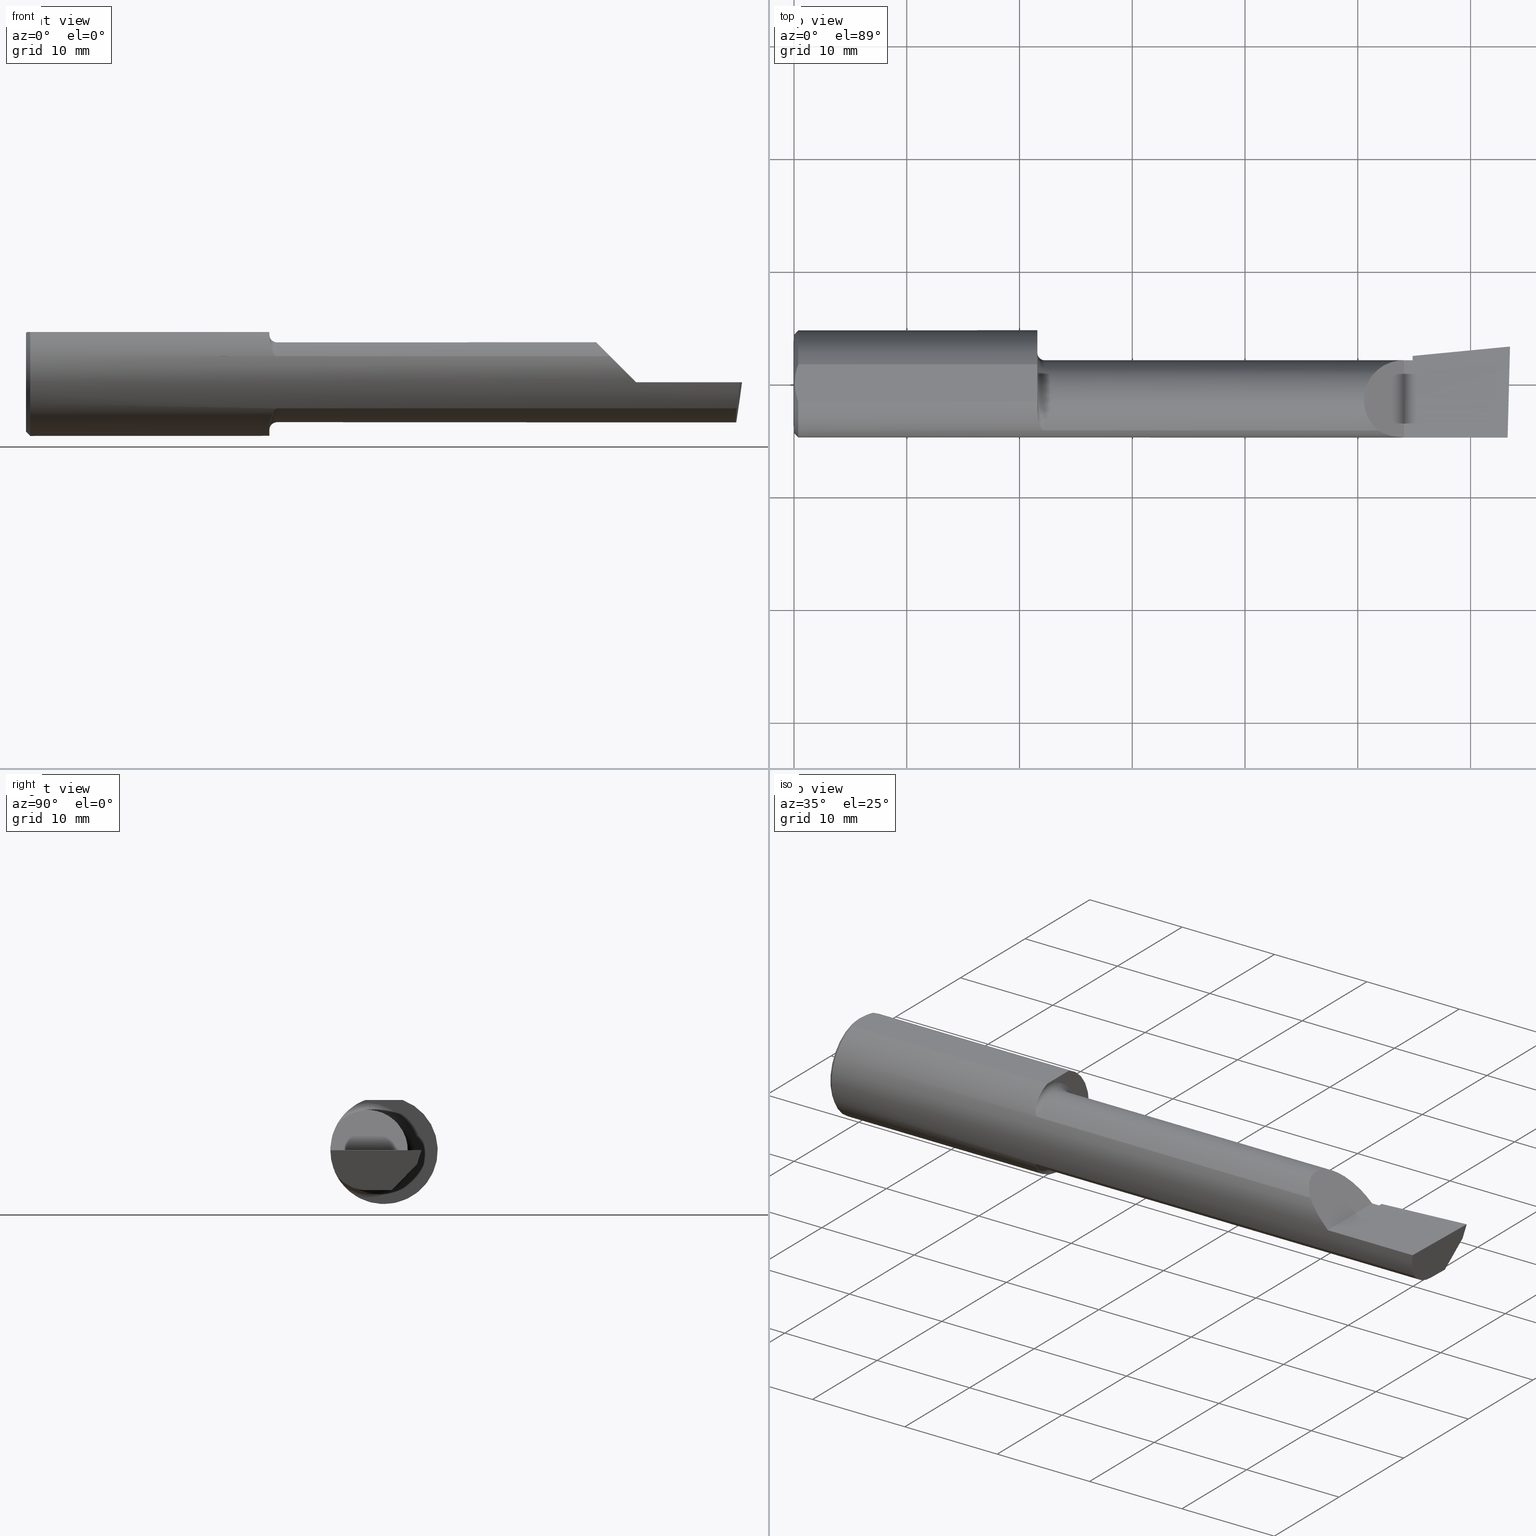
[diagram: canonical four-view strip — front | top / right | iso, engineering-drawing reading convention]
A machine part, canonical four-view strip (front | top / right | iso — engineering-drawing reading convention). The complete STEP part file that produces these views, byte-faithful:
ISO-10303-21;
HEADER;
FILE_DESCRIPTION (( 'STEP AP203' ),
    '1' );
FILE_NAME ('217492-B3201600.STEP',
    '2024-04-26T19:25:23',
    ( '' ),
    ( '' ),
    'SwSTEP 2.0',
    'SolidWorks 2022',
    '' );
FILE_SCHEMA (( 'CONFIG_CONTROL_DESIGN' ));
ENDSEC;

DATA;
#1 = FACE_OUTER_BOUND ( 'NONE', #65, .T. ) ;
#2 = VERTEX_POINT ( 'NONE', #340 ) ;
#3 = DIRECTION ( 'NONE',  ( 0.000000000000000000, 0.2936076258024060137, 0.9559260233253795702 ) ) ;
#4 = DIRECTION ( 'NONE',  ( -1.000000000000000000, -0.000000000000000000, -0.000000000000000000 ) ) ;
#5 = EDGE_CURVE ( 'NONE', #287, #401, #40, .T. ) ;
#6 = ORIENTED_EDGE ( 'NONE', *, *, #450, .F. ) ;
#7 = PRODUCT_DEFINITION_FORMATION_WITH_SPECIFIED_SOURCE ( 'ANY', '', #95, .NOT_KNOWN. ) ;
#8 = CARTESIAN_POINT ( 'NONE',  ( 0.8750000000000002220, -0.1635956445993032027, -0.09130436773856145938 ) ) ;
#9 = CARTESIAN_POINT ( 'NONE',  ( 2.477873865042410806, -0.05739999999999999963, -0.1400500000000000633 ) ) ;
#10 = PRODUCT_RELATED_PRODUCT_CATEGORY ( 'detail', '', ( #95 ) ) ;
#11 = VERTEX_POINT ( 'NONE', #532 ) ;
#12 = VECTOR ( 'NONE', #568, 39.37007874015748854 ) ;
#13 = CARTESIAN_POINT ( 'NONE',  ( 0.000000000000000000, 0.000000000000000000, 0.000000000000000000 ) ) ;
#14 = DIRECTION ( 'NONE',  ( 0.000000000000000000, 0.6963153109074925462, 0.7177360153954946975 ) ) ;
#15 = ORIENTED_EDGE ( 'NONE', *, *, #322, .F. ) ;
#16 = CARTESIAN_POINT ( 'NONE',  ( 2.511419111345318811, 0.1163922996227946677, -0.04999999999999999584 ) ) ;
#17 = PLANE ( 'NONE',  #25 ) ;
#18 = ORIENTED_EDGE ( 'NONE', *, *, #412, .T. ) ;
#19 = FACE_OUTER_BOUND ( 'NONE', #446, .T. ) ;
#20 = CARTESIAN_POINT ( 'NONE',  ( 2.491859106488688358, 0.02714641170210404381, -0.1400500000000000633 ) ) ;
#21 = ADVANCED_FACE ( 'NONE', ( #97 ), #476, .F. ) ;
#22 = ORIENTED_EDGE ( 'NONE', *, *, #488, .F. ) ;
#23 = CARTESIAN_POINT ( 'NONE',  ( 0.01499999999999997863, -0.06597272163553657975, 0.1753499999999999781 ) ) ;
#24 = DIRECTION ( 'NONE',  ( 0.000000000000000000, 0.000000000000000000, 1.000000000000000000 ) ) ;
#25 = AXIS2_PLACEMENT_3D ( 'NONE', #460, #53, #366 ) ;
#26 = ORIENTED_EDGE ( 'NONE', *, *, #335, .T. ) ;
#27 = DIRECTION ( 'NONE',  ( 1.000000000000000000, 6.829619984160658046E-18, 0.000000000000000000 ) ) ;
#28 = EDGE_CURVE ( 'NONE', #389, #11, #490, .T. ) ;
#29 = B_SPLINE_CURVE_WITH_KNOTS ( 'NONE', 3,
 ( #414, #33, #518, #35, #468, #613, #511, #324, #320, #225, #607, #319, #419, #171 ),
 .UNSPECIFIED., .F., .F.,
 ( 4, 2, 2, 2, 2, 2, 4 ),
 ( 0.0002471551878304247040, 0.0008987327522055663489, 0.001550310316580707885, 0.002201887880955849530, 0.002527676663143419919, 0.002690571054237202945, 0.002853465445330985537 ),
 .UNSPECIFIED. ) ;
#30 = APPROVAL_ROLE ( '' ) ;
#31 = DIRECTION ( 'NONE',  ( -1.000000000000000000, -6.829619984160658046E-18, -0.000000000000000000 ) ) ;
#32 =( LENGTH_UNIT ( ) NAMED_UNIT ( * ) SI_UNIT ( $, .METRE. ) );
#33 = CARTESIAN_POINT ( 'NONE',  ( 0.8500000000000003109, -0.1045012500212955386, 0.1557348687830034106 ) ) ;
#34 = APPLICATION_CONTEXT ( 'configuration controlled 3d designs of mechanical parts and assemblies' ) ;
#35 = CARTESIAN_POINT ( 'NONE',  ( 0.8518917549365453423, -0.1247344934163568814, 0.1400506178720499761 ) ) ;
#36 = DIRECTION ( 'NONE',  ( 0.000000000000000000, -1.000000000000000000, 0.000000000000000000 ) ) ;
#37 = LOCAL_TIME ( 12, 25, 23.00000000000000000, #561 ) ;
#38 = APPLICATION_CONTEXT ( 'configuration controlled 3d designs of mechanical parts and assemblies' ) ;
#39 = SECURITY_CLASSIFICATION_LEVEL ( 'unclassified' ) ;
#40 = LINE ( 'NONE', #390, #543 ) ;
#41 = CARTESIAN_POINT ( 'NONE',  ( 0.8750000000000002220, -0.1635956445993029529, 0.09130436773856175081 ) ) ;
#42 = EDGE_CURVE ( 'NONE', #593, #628, #281, .T. ) ;
#43 = CARTESIAN_POINT ( 'NONE',  ( 0.8637431740823496851, -0.1572750258711010374, -0.1018777902325211648 ) ) ;
#44 = EDGE_LOOP ( 'NONE', ( #463, #501, #158, #86, #483, #440 ) ) ;
#45 = AXIS2_PLACEMENT_3D ( 'NONE', #600, #68, #24 ) ;
#46 =( BOUNDED_CURVE ( )  B_SPLINE_CURVE ( 3, ( #122, #316, #78, #271 ),
 .UNSPECIFIED., .F., .T. ) 
 B_SPLINE_CURVE_WITH_KNOTS ( ( 4, 4 ),
 ( 4.712388980384689674, 5.221437360734125122 ),
 .UNSPECIFIED. ) 
 CURVE ( )  GEOMETRIC_REPRESENTATION_ITEM ( )  RATIONAL_B_SPLINE_CURVE ( ( 1.000000000000000000, 0.9785221379938656705, 0.9785221379938656705, 1.000000000000000000 ) ) 
 REPRESENTATION_ITEM ( '' )  );
#47 = VERTEX_POINT ( 'NONE', #428 ) ;
#48 = VECTOR ( 'NONE', #377, 39.37007874015748143 ) ;
#49 = ORIENTED_EDGE ( 'NONE', *, *, #108, .T. ) ;
#50 = ADVANCED_FACE ( 'NONE', ( #132 ), #597, .T. ) ;
#51 = VERTEX_POINT ( 'NONE', #528 ) ;
#52 = CARTESIAN_POINT ( 'NONE',  ( 0.008227791779583789808, -0.04447712204611815878, 0.1753499999999999781 ) ) ;
#53 = DIRECTION ( 'NONE',  ( -1.000000000000000000, -6.829619984160658046E-18, 0.000000000000000000 ) ) ;
#54 = CC_DESIGN_DATE_AND_TIME_ASSIGNMENT ( #380, #614, ( #367 ) ) ;
#55 = ORIENTED_EDGE ( 'NONE', *, *, #129, .F. ) ;
#56 = DIRECTION ( 'NONE',  ( -1.000000000000000000, -0.000000000000000000, -0.000000000000000000 ) ) ;
#57 = CARTESIAN_POINT ( 'NONE',  ( 2.481080296960508580, -0.1635956445993030639, -0.09130436773856169530 ) ) ;
#58 = ORIENTED_EDGE ( 'NONE', *, *, #178, .T. ) ;
#59 = CARTESIAN_POINT ( 'NONE',  ( 0.01125230581755086272, 0.05532998191409922023, 0.1753500000000000059 ) ) ;
#60 = CARTESIAN_POINT ( 'NONE',  ( 2.481080296960508580, -0.1635956445993030639, -0.09130436773856169530 ) ) ;
#61 = EDGE_CURVE ( 'NONE', #435, #51, #90, .T. ) ;
#62 = ORIENTED_EDGE ( 'NONE', *, *, #286, .F. ) ;
#63 = DIRECTION ( 'NONE',  ( 6.829619984160658046E-18, -1.000000000000000000, 0.000000000000000000 ) ) ;
#64 = CARTESIAN_POINT ( 'NONE',  ( 2.129999999999999893, 0.08264999999999983471, 1.065442715258197396E-16 ) ) ;
#65 = EDGE_LOOP ( 'NONE', ( #405, #494, #336, #581 ) ) ;
#66 = CALENDAR_DATE ( 2024, 26, 4 ) ;
#67 = DIRECTION ( 'NONE',  ( 0.1219104985251942275, 0.000000000000000000, 0.9925410975618785825 ) ) ;
#68 = DIRECTION ( 'NONE',  ( -1.000000000000000000, -0.000000000000000000, -0.000000000000000000 ) ) ;
#69 = VERTEX_POINT ( 'NONE', #8 ) ;
#70 = CALENDAR_DATE ( 2024, 26, 4 ) ;
#71 = CARTESIAN_POINT ( 'NONE',  ( 0.8500000000000001998, 0.2373500000000000332, 0.1753499999999999504 ) ) ;
#72 = VECTOR ( 'NONE', #103, 39.37007874015748143 ) ;
#73 = ADVANCED_FACE ( 'NONE', ( #545 ), #437, .T. ) ;
#74 = PERSON_AND_ORGANIZATION_ROLE ( 'creator' ) ;
#75 = DIRECTION ( 'NONE',  ( 0.000000000000000000, -1.000000000000000000, 0.000000000000000000 ) ) ;
#76 = CC_DESIGN_PERSON_AND_ORGANIZATION_ASSIGNMENT ( #510, #74, ( #7 ) ) ;
#77 = APPROVAL_STATUS ( 'not_yet_approved' ) ;
#78 = CARTESIAN_POINT ( 'NONE',  ( 2.066758987970638284, -0.1792580844883770730, 0.06324101202936138755 ) ) ;
#79 = VECTOR ( 'NONE', #262, 39.37007874015748143 ) ;
#80 = CARTESIAN_POINT ( 'NONE',  ( 2.129999999999999893, -0.2500000000000000555, 1.065442715258197396E-16 ) ) ;
#81 = VECTOR ( 'NONE', #591, 39.37007874015748143 ) ;
#82 = ADVANCED_FACE ( 'NONE', ( #19 ), #254, .F. ) ;
#83 = DIRECTION ( 'NONE',  ( 0.7071067811865390240, 0.000000000000000000, -0.7071067811865560104 ) ) ;
#84 = B_SPLINE_CURVE_WITH_KNOTS ( 'NONE', 3,
 ( #157, #300, #164, #497, #59, #100 ),
 .UNSPECIFIED., .F., .F.,
 ( 4, 2, 4 ),
 ( 0.003480013901590607410, 0.004330767971208083697, 0.005181522040825559984 ),
 .UNSPECIFIED. ) ;
#85 = CARTESIAN_POINT ( 'NONE',  ( 2.160000000000000142, 0.06382066673065307782, -0.06931012851386068874 ) ) ;
#86 = ORIENTED_EDGE ( 'NONE', *, *, #602, .F. ) ;
#87 = CC_DESIGN_APPROVAL ( #186, ( #7 ) ) ;
#88 = DIRECTION ( 'NONE',  ( 1.000000000000000000, 0.000000000000000000, 0.000000000000000000 ) ) ;
#89 = ORIENTED_EDGE ( 'NONE', *, *, #392, .F. ) ;
#90 = LINE ( 'NONE', #285, #136 ) ;
#91 = CARTESIAN_POINT ( 'NONE',  ( 2.160000000000000142, -0.05739999999999999963, 0.000000000000000000 ) ) ;
#92 = ORIENTED_EDGE ( 'NONE', *, *, #477, .T. ) ;
#93 = VERTEX_POINT ( 'NONE', #198 ) ;
#94 = AXIS2_PLACEMENT_3D ( 'NONE', #606, #124, #360 ) ;
#95 = PRODUCT ( '217492-B3201600', '217492-B3201600', '', ( #555 ) ) ;
#96 = EDGE_CURVE ( 'NONE', #201, #603, #588, .T. ) ;
#97 = FACE_OUTER_BOUND ( 'NONE', #378, .T. ) ;
#98 = CIRCLE ( 'NONE', #231, 0.1400500000000000356 ) ;
#99 = ORIENTED_EDGE ( 'NONE', *, *, #376, .F. ) ;
#100 = CARTESIAN_POINT ( 'NONE',  ( 0.01499999999999999424, 0.06597272163553663527, 0.1753499999999999781 ) ) ;
#101 = DIRECTION ( 'NONE',  ( -1.000000000000000000, -6.829619984160658046E-18, 0.000000000000000000 ) ) ;
#102 = ORIENTED_EDGE ( 'NONE', *, *, #183, .F. ) ;
#103 = DIRECTION ( 'NONE',  ( -1.000000000000000000, 5.691349986800549142E-18, -0.000000000000000000 ) ) ;
#104 = CARTESIAN_POINT ( 'NONE',  ( 2.038695632261437130, -0.1635956445993029529, 0.09130436773856188959 ) ) ;
#105 = EDGE_LOOP ( 'NONE', ( #619, #625, #233, #112, #116, #295 ) ) ;
#106 = CARTESIAN_POINT ( 'NONE',  ( 0.01499999999999999424, 0.000000000000000000, 0.000000000000000000 ) ) ;
#107 = CARTESIAN_POINT ( 'NONE',  ( 2.481080296960508580, -0.1635956445993030639, -0.09130436773856169530 ) ) ;
#108 = EDGE_CURVE ( 'NONE', #444, #69, #514, .T. ) ;
#109 = EDGE_LOOP ( 'NONE', ( #213, #217, #537, #306, #15 ) ) ;
#110 = DIRECTION ( 'NONE',  ( -1.000000000000000000, -6.829619984160658046E-18, -0.000000000000000000 ) ) ;
#111 = CARTESIAN_POINT ( 'NONE',  ( 0.000000000000000000, 0.000000000000000000, -0.1723499999999996424 ) ) ;
#112 = ORIENTED_EDGE ( 'NONE', *, *, #369, .F. ) ;
#113 = CARTESIAN_POINT ( 'NONE',  ( 0.8500000000000001998, 0.000000000000000000, 0.000000000000000000 ) ) ;
#114 = PLANE ( 'NONE',  #311 ) ;
#115 =( BOUNDED_CURVE ( )  B_SPLINE_CURVE ( 3, ( #400, #594, #548, #535 ),
 .UNSPECIFIED., .F., .F. ) 
 B_SPLINE_CURVE_WITH_KNOTS ( ( 4, 4 ),
 ( 5.422530673488458852, 7.853981633974482790 ),
 .UNSPECIFIED. ) 
 CURVE ( )  GEOMETRIC_REPRESENTATION_ITEM ( )  RATIONAL_B_SPLINE_CURVE ( ( 1.000000000000000000, 0.5651045289226863666, 0.5651045289226863666, 1.000000000000000000 ) ) 
 REPRESENTATION_ITEM ( '' )  );
#116 = ORIENTED_EDGE ( 'NONE', *, *, #28, .F. ) ;
#117 = LINE ( 'NONE', #364, #342 ) ;
#118 = EDGE_CURVE ( 'NONE', #201, #389, #159, .T. ) ;
#119 = DIRECTION ( 'NONE',  ( -0.7071067811865511255, 0.000000000000000000, 0.7071067811865437980 ) ) ;
#120 = DIRECTION ( 'NONE',  ( 0.000000000000000000, 1.000000000000000000, -1.438723400918613551E-16 ) ) ;
#121 =( NAMED_UNIT ( * ) SI_UNIT ( $, .STERADIAN. ) SOLID_ANGLE_UNIT ( ) );
#122 = CARTESIAN_POINT ( 'NONE',  ( 2.129999999999999893, -0.1873499999999999888, 1.065442715258197396E-16 ) ) ;
#123 = CIRCLE ( 'NONE', #534, 0.1873499999999999888 ) ;
#124 = DIRECTION ( 'NONE',  ( 0.000000000000000000, 0.000000000000000000, 1.000000000000000000 ) ) ;
#125 = DIRECTION ( 'NONE',  ( 0.000000000000000000, 0.000000000000000000, 1.000000000000000000 ) ) ;
#126 =( NAMED_UNIT ( * ) PLANE_ANGLE_UNIT ( ) SI_UNIT ( $, .RADIAN. ) );
#127 = CARTESIAN_POINT ( 'NONE',  ( 0.8500000000000001998, 0.06597272163553663527, 0.1753499999999999781 ) ) ;
#128 = LOCAL_TIME ( 12, 25, 23.00000000000000000, #508 ) ;
#129 = EDGE_CURVE ( 'NONE', #240, #47, #349, .T. ) ;
#130 = CARTESIAN_POINT ( 'NONE',  ( 2.493766568580444432, 0.1168246249203733628, -0.04780233936830585728 ) ) ;
#131 = VECTOR ( 'NONE', #423, 39.37007874015748143 ) ;
#132 = FACE_OUTER_BOUND ( 'NONE', #522, .T. ) ;
#133 =( BOUNDED_CURVE ( )  B_SPLINE_CURVE ( 3, ( #57, #250, #453, #549 ),
 .UNSPECIFIED., .F., .T. ) 
 B_SPLINE_CURVE_WITH_KNOTS ( ( 4, 4 ),
 ( 0.8516985021657653698, 1.360746882515200484 ),
 .UNSPECIFIED. ) 
 CURVE ( )  GEOMETRIC_REPRESENTATION_ITEM ( )  RATIONAL_B_SPLINE_CURVE ( ( 1.000000000000000000, 0.9785221379938656705, 0.9785221379938656705, 1.000000000000000000 ) ) 
 REPRESENTATION_ITEM ( '' )  );
#134 = EDGE_CURVE ( 'NONE', #507, #593, #115, .T. ) ;
#135 = CARTESIAN_POINT ( 'NONE',  ( 0.000000000000000000, 0.000000000000000000, 0.000000000000000000 ) ) ;
#136 = VECTOR ( 'NONE', #205, 39.37007874015748143 ) ;
#137 = ORIENTED_EDGE ( 'NONE', *, *, #61, .T. ) ;
#138 = DIRECTION ( 'NONE',  ( 1.000000000000000000, 0.000000000000000000, 0.000000000000000000 ) ) ;
#139 = CC_DESIGN_PERSON_AND_ORGANIZATION_ASSIGNMENT ( #502, #465, ( #395 ) ) ;
#140 = VECTOR ( 'NONE', #83, 39.37007874015748143 ) ;
#141 = CARTESIAN_POINT ( 'NONE',  ( 0.8727799353194347631, -0.1635956445993031472, -0.09130436773856151489 ) ) ;
#142 = ORIENTED_EDGE ( 'NONE', *, *, #627, .T. ) ;
#143 = CARTESIAN_POINT ( 'NONE',  ( 0.8530417279495582372, -0.1311116946065053468, -0.1340922927843368750 ) ) ;
#144 = ORIENTED_EDGE ( 'NONE', *, *, #376, .T. ) ;
#145 = ORIENTED_EDGE ( 'NONE', *, *, #211, .T. ) ;
#146 = EDGE_CURVE ( 'NONE', #520, #598, #371, .T. ) ;
#147 = TOROIDAL_SURFACE ( 'NONE', #280, 0.1650499999999999190, 0.02499999999999999792 ) ;
#148 = PRODUCT_DEFINITION_SHAPE ( 'NONE', 'NONE',  #395 ) ;
#149 = EDGE_LOOP ( 'NONE', ( #484, #89, #551, #410, #457, #243 ) ) ;
#150 = DIRECTION ( 'NONE',  ( -1.000000000000000000, -0.000000000000000000, -0.000000000000000000 ) ) ;
#151 = DIRECTION ( 'NONE',  ( -1.000000000000000000, -0.000000000000000000, -0.000000000000000000 ) ) ;
#152 = AXIS2_PLACEMENT_3D ( 'NONE', #80, #552, #119 ) ;
#153 = ORIENTED_EDGE ( 'NONE', *, *, #178, .F. ) ;
#154 = CARTESIAN_POINT ( 'NONE',  ( 0.8750000000000002220, -0.05740000000000000657, 0.000000000000000000 ) ) ;
#155 = DIRECTION ( 'NONE',  ( -1.000000000000000000, 0.000000000000000000, 1.033731667140896077E-16 ) ) ;
#156 = VERTEX_POINT ( 'NONE', #303 ) ;
#157 = CARTESIAN_POINT ( 'NONE',  ( 0.003000000000000218638, 2.334609556160449697E-17, 0.1753499999999999781 ) ) ;
#158 = ORIENTED_EDGE ( 'NONE', *, *, #503, .F. ) ;
#159 = LINE ( 'NONE', #16, #332 ) ;
#160 = AXIS2_PLACEMENT_3D ( 'NONE', #574, #138, #333 ) ;
#161 = CARTESIAN_POINT ( 'NONE',  ( 2.500000000000000000, -0.05739999999999999963, -0.1400500000000000633 ) ) ;
#162 = CIRCLE ( 'NONE', #489, 0.1723499999999996424 ) ;
#163 = ORIENTED_EDGE ( 'NONE', *, *, #264, .T. ) ;
#164 = CARTESIAN_POINT ( 'NONE',  ( 0.004115035183746292881, 0.02255629470626744487, 0.1753499999999999781 ) ) ;
#165 = DIRECTION ( 'NONE',  ( -1.000000000000000000, -6.829619984160658046E-18, -0.000000000000000000 ) ) ;
#166 = EDGE_CURVE ( 'NONE', #93, #547, #252, .T. ) ;
#167 = VERTEX_POINT ( 'NONE', #599 ) ;
#168 = CARTESIAN_POINT ( 'NONE',  ( 0.8500000000000001998, -0.09715400696864139041, 0.1601908905959922857 ) ) ;
#169 = LINE ( 'NONE', #605, #212 ) ;
#170 = APPLICATION_PROTOCOL_DEFINITION ( 'international standard', 'config_control_design', 1994, #34 ) ;
#171 = CARTESIAN_POINT ( 'NONE',  ( 0.8750000000000002220, -0.1635956445993029529, 0.09130436773856175081 ) ) ;
#172 = VECTOR ( 'NONE', #352, 39.37007874015748854 ) ;
#173 = PERSON_AND_ORGANIZATION_ROLE ( 'design_owner' ) ;
#174 = DIRECTION ( 'NONE',  ( 6.829619984160658816E-18, -1.000000000000000000, 0.000000000000000000 ) ) ;
#175 = AXIS2_PLACEMENT_3D ( 'NONE', #441, #341, #3 ) ;
#176 = APPLICATION_PROTOCOL_DEFINITION ( 'international standard', 'config_control_design', 1994, #38 ) ;
#177 = CARTESIAN_POINT ( 'NONE',  ( 2.160000000000000142, -0.05739999999999999963, 0.000000000000000000 ) ) ;
#178 = EDGE_CURVE ( 'NONE', #47, #51, #393, .T. ) ;
#179 = CARTESIAN_POINT ( 'NONE',  ( 2.129999999999999893, -0.2500000000000000555, 1.065442715258197396E-16 ) ) ;
#180 = CC_DESIGN_SECURITY_CLASSIFICATION ( #367, ( #7 ) ) ;
#181 = APPROVAL_STATUS ( 'not_yet_approved' ) ;
#182 = AXIS2_PLACEMENT_3D ( 'NONE', #185, #101, #432 ) ;
#183 = EDGE_CURVE ( 'NONE', #496, #167, #84, .T. ) ;
#184 = ORIENTED_EDGE ( 'NONE', *, *, #28, .T. ) ;
#185 = CARTESIAN_POINT ( 'NONE',  ( 2.160000000000000142, 0.09791172361283667636, 0.000000000000000000 ) ) ;
#186 = APPROVAL ( #77, 'UNSPECIFIED' ) ;
#187 = DIRECTION ( 'NONE',  ( 1.000000000000000000, 0.000000000000000000, 0.000000000000000000 ) ) ;
#188 = ORIENTED_EDGE ( 'NONE', *, *, #392, .T. ) ;
#189 = EDGE_LOOP ( 'NONE', ( #359, #234, #524, #26, #487, #62, #491, #347, #586, #571, #92, #6, #396 ) ) ;
#190 = CARTESIAN_POINT ( 'NONE',  ( 2.129999999999999893, -0.1873499999999999888, 1.065442715258197396E-16 ) ) ;
#191 = EDGE_LOOP ( 'NONE', ( #442, #363, #102, #431, #438 ) ) ;
#192 = DIRECTION ( 'NONE',  ( 0.000000000000000000, 1.000000000000000000, 0.000000000000000000 ) ) ;
#193 = EDGE_CURVE ( 'NONE', #2, #253, #123, .T. ) ;
#194 = DIRECTION ( 'NONE',  ( 1.000000000000000000, 6.829619984160658046E-18, 0.000000000000000000 ) ) ;
#195 = CARTESIAN_POINT ( 'NONE',  ( 0.000000000000000000, 0.000000000000000000, 0.000000000000000000 ) ) ;
#196 =( GEOMETRIC_REPRESENTATION_CONTEXT ( 3 ) GLOBAL_UNCERTAINTY_ASSIGNED_CONTEXT ( ( #272 ) ) GLOBAL_UNIT_ASSIGNED_CONTEXT ( ( #612, #126, #121 ) ) REPRESENTATION_CONTEXT ( 'NONE', 'WORKASPACE' ) );
#197 = VERTEX_POINT ( 'NONE', #209 ) ;
#198 = CARTESIAN_POINT ( 'NONE',  ( 0.000000000000000000, 2.202527268266512578E-17, 0.1723499999999996424 ) ) ;
#199 = PLANE ( 'NONE',  #475 ) ;
#200 = ADVANCED_FACE ( 'NONE', ( #402 ), #499, .F. ) ;
#201 = VERTEX_POINT ( 'NONE', #459 ) ;
#202 = DIRECTION ( 'NONE',  ( 0.000000000000000000, 0.000000000000000000, 1.000000000000000000 ) ) ;
#203 = PLANE ( 'NONE',  #509 ) ;
#204 = ORIENTED_EDGE ( 'NONE', *, *, #602, .T. ) ;
#205 = DIRECTION ( 'NONE',  ( 4.755568962650853567E-18, -0.6963153109074925462, -0.7177360153954948085 ) ) ;
#206 = FACE_OUTER_BOUND ( 'NONE', #105, .T. ) ;
#207 = ORIENTED_EDGE ( 'NONE', *, *, #134, .T. ) ;
#208 = APPROVAL_PERSON_ORGANIZATION ( #325, #348, #329 ) ;
#209 = CARTESIAN_POINT ( 'NONE',  ( 2.480058035321255794, 0.02601009779168069955, -0.1400500000000000633 ) ) ;
#210 = FACE_OUTER_BOUND ( 'NONE', #399, .T. ) ;
#211 = EDGE_CURVE ( 'NONE', #598, #496, #222, .T. ) ;
#212 = VECTOR ( 'NONE', #498, 39.37007874015748143 ) ;
#213 = ORIENTED_EDGE ( 'NONE', *, *, #166, .F. ) ;
#214 = PERSON_AND_ORGANIZATION ( #353, #415 ) ;
#215 = FACE_OUTER_BOUND ( 'NONE', #241, .T. ) ;
#216 = CARTESIAN_POINT ( 'NONE',  ( 2.476787929832031221, -0.09887019258091189755, -0.1400500000000000078 ) ) ;
#217 = ORIENTED_EDGE ( 'NONE', *, *, #461, .T. ) ;
#218 = DIRECTION ( 'NONE',  ( -0.000000000000000000, 1.000000000000000000, -0.000000000000000000 ) ) ;
#219 = DIRECTION ( 'NONE',  ( 1.000000000000000000, 6.829619984160658046E-18, 0.000000000000000000 ) ) ;
#220 = APPROVAL_PERSON_ORGANIZATION ( #558, #298, #368 ) ;
#221 = AXIS2_PLACEMENT_3D ( 'NONE', #106, #345, #292 ) ;
#222 = B_SPLINE_CURVE_WITH_KNOTS ( 'NONE', 3,
 ( #23, #583, #52, #244, #269, #565 ),
 .UNSPECIFIED., .F., .F.,
 ( 4, 2, 4 ),
 ( 0.001779942938356815062, 0.002629978419973711019, 0.003480013901590607410 ),
 .UNSPECIFIED. ) ;
#223 = APPROVAL_STATUS ( 'not_yet_approved' ) ;
#224 = EDGE_CURVE ( 'NONE', #344, #2, #473, .T. ) ;
#225 = CARTESIAN_POINT ( 'NONE',  ( 0.8668559945294939117, -0.1603175578889970143, 0.09696363432848434383 ) ) ;
#226 = CARTESIAN_POINT ( 'NONE',  ( 2.490039159128059953, -0.2497391662021650194, 6.932588350567417155E-17 ) ) ;
#227 = SHAPE_DEFINITION_REPRESENTATION ( #148, #516 ) ;
#228 = ADVANCED_FACE ( 'NONE', ( #215 ), #466, .T. ) ;
#229 = PLANE ( 'NONE',  #290 ) ;
#230 = ORIENTED_EDGE ( 'NONE', *, *, #627, .F. ) ;
#231 = AXIS2_PLACEMENT_3D ( 'NONE', #445, #301, #542 ) ;
#232 = COORDINATED_UNIVERSAL_TIME_OFFSET ( 8, 0, .BEHIND. ) ;
#233 = ORIENTED_EDGE ( 'NONE', *, *, #61, .F. ) ;
#234 = ORIENTED_EDGE ( 'NONE', *, *, #540, .T. ) ;
#235 = PLANE ( 'NONE',  #175 ) ;
#236 = AXIS2_PLACEMENT_3D ( 'NONE', #154, #110, #538 ) ;
#237 = DIRECTION ( 'NONE',  ( -1.000000000000000000, -6.829619984160658046E-18, -0.000000000000000000 ) ) ;
#238 = ORIENTED_EDGE ( 'NONE', *, *, #531, .T. ) ;
#239 = EDGE_CURVE ( 'NONE', #253, #578, #617, .T. ) ;
#240 = VERTEX_POINT ( 'NONE', #273 ) ;
#241 = EDGE_LOOP ( 'NONE', ( #22, #18, #480, #351, #207, #572, #238, #527, #144, #55 ) ) ;
#242 = CARTESIAN_POINT ( 'NONE',  ( 1.517500000000000071, -0.1635956445993030639, -0.09130436773856169530 ) ) ;
#243 = ORIENTED_EDGE ( 'NONE', *, *, #540, .F. ) ;
#244 = CARTESIAN_POINT ( 'NONE',  ( 0.004093196532652216939, -0.02240707710020816909, 0.1753499999999999504 ) ) ;
#245 = DIRECTION ( 'NONE',  ( -1.033731667140896077E-16, 0.000000000000000000, -1.000000000000000000 ) ) ;
#246 = EDGE_CURVE ( 'NONE', #401, #593, #411, .T. ) ;
#247 = AXIS2_PLACEMENT_3D ( 'NONE', #355, #452, #63 ) ;
#248 = ORIENTED_EDGE ( 'NONE', *, *, #129, .T. ) ;
#249 = CARTESIAN_POINT ( 'NONE',  ( 2.500188977433779769, 0.1311105994646662165, 0.001440373173041438384 ) ) ;
#250 = CARTESIAN_POINT ( 'NONE',  ( 2.484117089522337452, -0.1792580844883771285, -0.06324101202936134591 ) ) ;
#251 = CC_DESIGN_PERSON_AND_ORGANIZATION_ASSIGNMENT ( #529, #386, ( #367 ) ) ;
#252 = CIRCLE ( 'NONE', #557, 0.1723499999999996424 ) ;
#253 = VERTEX_POINT ( 'NONE', #168 ) ;
#254 = PLANE ( 'NONE',  #247 ) ;
#255 = FACE_OUTER_BOUND ( 'NONE', #622, .T. ) ;
#256 = DIMENSIONAL_EXPONENTS ( 1.000000000000000000, 0.000000000000000000, 0.000000000000000000, 0.000000000000000000, 0.000000000000000000, 0.000000000000000000, 0.000000000000000000 ) ;
#257 = ORIENTED_EDGE ( 'NONE', *, *, #294, .F. ) ;
#258 = DIRECTION ( 'NONE',  ( -0.9953961983671800740, -0.09584575252021031166, 0.000000000000000000 ) ) ;
#259 = CARTESIAN_POINT ( 'NONE',  ( 2.477925907309857401, -0.1365595166907236646, -0.1227499502647107360 ) ) ;
#260 = ORIENTED_EDGE ( 'NONE', *, *, #404, .T. ) ;
#261 = DATE_TIME_ROLE ( 'creation_date' ) ;
#262 = DIRECTION ( 'NONE',  ( 0.1240019227988267692, 0.3022330132596589558, 0.9451342385281472636 ) ) ;
#263 = CARTESIAN_POINT ( 'NONE',  ( 2.500000000000000000, 0.2373500000000000332, 0.1753499999999999504 ) ) ;
#264 = EDGE_CURVE ( 'NONE', #435, #11, #426, .T. ) ;
#265 = AXIS2_PLACEMENT_3D ( 'NONE', #464, #471, #174 ) ;
#266 = ORIENTED_EDGE ( 'NONE', *, *, #239, .F. ) ;
#267 = DATE_AND_TIME ( #70, #128 ) ;
#268 = LINE ( 'NONE', #312, #282 ) ;
#269 = CARTESIAN_POINT ( 'NONE',  ( 0.003000000000000172667, -0.01126410975715121283, 0.1753500000000000059 ) ) ;
#270 = COORDINATED_UNIVERSAL_TIME_OFFSET ( 8, 0, .BEHIND. ) ;
#271 = CARTESIAN_POINT ( 'NONE',  ( 2.038695632261437130, -0.1635956445993029529, 0.09130436773856188959 ) ) ;
#272 = UNCERTAINTY_MEASURE_WITH_UNIT (LENGTH_MEASURE( 1.000000000000000082E-05 ), #612, 'distance_accuracy_value', 'NONE');
#273 = CARTESIAN_POINT ( 'NONE',  ( 2.477873865042410806, -0.05739999999999999963, -0.1400500000000000633 ) ) ;
#274 = PERSON_AND_ORGANIZATION_ROLE ( 'design_supplier' ) ;
#275 = DIRECTION ( 'NONE',  ( 0.000000000000000000, -1.000000000000000000, -1.776356839400250465E-15 ) ) ;
#276 = EDGE_CURVE ( 'NONE', #444, #507, #268, .T. ) ;
#277 = DIRECTION ( 'NONE',  ( 1.000000000000000000, 6.829619984160658046E-18, 0.000000000000000000 ) ) ;
#278 = DIRECTION ( 'NONE',  ( 4.755568962650853567E-18, -0.6963153109074925462, -0.7177360153954948085 ) ) ;
#279 = CC_DESIGN_DATE_AND_TIME_ASSIGNMENT ( #458, #261, ( #395 ) ) ;
#280 = AXIS2_PLACEMENT_3D ( 'NONE', #304, #165, #500 ) ;
#281 = LINE ( 'NONE', #383, #573 ) ;
#282 = VECTOR ( 'NONE', #27, 39.37007874015748143 ) ;
#283 = CARTESIAN_POINT ( 'NONE',  ( 0.8679759419021536582, -0.1612443294219082224, -0.09540922431498190248 ) ) ;
#284 = ORIENTED_EDGE ( 'NONE', *, *, #286, .T. ) ;
#285 = CARTESIAN_POINT ( 'NONE',  ( 2.160000000000000142, 0.06382066673065307782, -0.06931012851386068874 ) ) ;
#286 = EDGE_CURVE ( 'NONE', #253, #444, #29, .T. ) ;
#287 = VERTEX_POINT ( 'NONE', #370 ) ;
#288 = DIRECTION ( 'NONE',  ( 4.755568962650853567E-18, -0.6963153109074925462, -0.7177360153954948085 ) ) ;
#289 = DIRECTION ( 'NONE',  ( 0.000000000000000000, 0.000000000000000000, -1.000000000000000000 ) ) ;
#290 = AXIS2_PLACEMENT_3D ( 'NONE', #479, #277, #474 ) ;
#291 = ORIENTED_EDGE ( 'NONE', *, *, #118, .T. ) ;
#292 = DIRECTION ( 'NONE',  ( 0.000000000000000000, 0.000000000000000000, -1.000000000000000000 ) ) ;
#293 = CARTESIAN_POINT ( 'NONE',  ( 0.8561458414306046816, -0.1426194794824340029, -0.1217813759115466826 ) ) ;
#294 = EDGE_CURVE ( 'NONE', #547, #93, #162, .T. ) ;
#295 = ORIENTED_EDGE ( 'NONE', *, *, #118, .F. ) ;
#296 = CARTESIAN_POINT ( 'NONE',  ( 0.01499999999999999424, 0.000000000000000000, 0.000000000000000000 ) ) ;
#297 = DIRECTION ( 'NONE',  ( -0.06894566448119619773, 0.7160281025913034503, -0.6946583704589934793 ) ) ;
#298 = APPROVAL ( #223, 'UNSPECIFIED' ) ;
#299 = VECTOR ( 'NONE', #278, 39.37007874015748143 ) ;
#300 = CARTESIAN_POINT ( 'NONE',  ( 0.003000000000000169632, 0.01127363201155560934, 0.1753499999999999781 ) ) ;
#301 = DIRECTION ( 'NONE',  ( -1.000000000000000000, -6.829619984160658046E-18, -0.000000000000000000 ) ) ;
#302 = EDGE_LOOP ( 'NONE', ( #327, #188, #248, #58 ) ) ;
#303 = CARTESIAN_POINT ( 'NONE',  ( 2.160000000000000142, 0.09791172361284168624, 3.286754617377316716E-16 ) ) ;
#304 = CARTESIAN_POINT ( 'NONE',  ( 0.8750000000000002220, -0.05740000000000003433, 0.000000000000000000 ) ) ;
#305 = ADVANCED_FACE ( 'NONE', ( #417 ), #610, .F. ) ;
#306 = ORIENTED_EDGE ( 'NONE', *, *, #609, .T. ) ;
#307 = APPROVAL_DATE_TIME ( #406, #298 ) ;
#308 = CARTESIAN_POINT ( 'NONE',  ( 2.475850273311264615, -0.1244607267090816621, -0.1422282308645907711 ) ) ;
#309 = CARTESIAN_POINT ( 'NONE',  ( 2.500000000000000000, -0.2500000000000000555, 6.829619984160658046E-17 ) ) ;
#310 = EDGE_LOOP ( 'NONE', ( #99, #137, #153 ) ) ;
#311 = AXIS2_PLACEMENT_3D ( 'NONE', #309, #245, #155 ) ;
#312 = CARTESIAN_POINT ( 'NONE',  ( 1.517500000000000071, -0.1635956445993030639, 0.09130436773856169530 ) ) ;
#313 = CARTESIAN_POINT ( 'NONE',  ( 0.01499999999999999424, 0.000000000000000000, -0.1873499999999999888 ) ) ;
#314 = AXIS2_PLACEMENT_3D ( 'NONE', #604, #31, #75 ) ;
#315 = APPROVAL_DATE_TIME ( #267, #186 ) ;
#316 = CARTESIAN_POINT ( 'NONE',  ( 2.097861799102314961, -0.1873500000000000165, 0.03213820089768509858 ) ) ;
#317 = EDGE_CURVE ( 'NONE', #197, #201, #373, .T. ) ;
#318 = PERSON_AND_ORGANIZATION ( #353, #415 ) ;
#319 = CARTESIAN_POINT ( 'NONE',  ( 0.8709038625689694557, -0.1628809688430621072, 0.09258733509388474003 ) ) ;
#320 = CARTESIAN_POINT ( 'NONE',  ( 0.8637641080978831765, -0.1573043405450771925, 0.1018329020719633965 ) ) ;
#321 = VECTOR ( 'NONE', #362, 39.37007874015748143 ) ;
#322 = EDGE_CURVE ( 'NONE', #547, #520, #375, .T. ) ;
#323 = VECTOR ( 'NONE', #559, 39.37007874015748854 ) ;
#324 = CARTESIAN_POINT ( 'NONE',  ( 0.8622046384587369605, -0.1550630761760524723, 0.1052254855377560416 ) ) ;
#325 = PERSON_AND_ORGANIZATION ( #353, #415 ) ;
#326 = CC_DESIGN_PERSON_AND_ORGANIZATION_ASSIGNMENT ( #526, #274, ( #7 ) ) ;
#327 = ORIENTED_EDGE ( 'NONE', *, *, #616, .F. ) ;
#328 = ORIENTED_EDGE ( 'NONE', *, *, #335, .F. ) ;
#329 = APPROVAL_ROLE ( '' ) ;
#330 = CARTESIAN_POINT ( 'NONE',  ( 2.160000000000000142, 0.06382066673065307782, -0.06931012851386068874 ) ) ;
#331 = CARTESIAN_POINT ( 'NONE',  ( 0.000000000000000000, 0.06597272163553663527, 0.1753499999999999781 ) ) ;
#332 = VECTOR ( 'NONE', #258, 39.37007874015748854 ) ;
#333 = DIRECTION ( 'NONE',  ( 0.000000000000000000, 0.000000000000000000, -1.000000000000000000 ) ) ;
#334 = AXIS2_PLACEMENT_3D ( 'NONE', #308, #504, #67 ) ;
#335 = EDGE_CURVE ( 'NONE', #401, #507, #46, .T. ) ;
#336 = ORIENTED_EDGE ( 'NONE', *, *, #193, .T. ) ;
#337 = ORIENTED_EDGE ( 'NONE', *, *, #166, .T. ) ;
#338 = CARTESIAN_POINT ( 'NONE',  ( 0.8503844419023954826, -0.1115101367984841357, -0.1507946173152222569 ) ) ;
#339 = CARTESIAN_POINT ( 'NONE',  ( 0.8580682074421709382, -0.1478915270140211402, -0.1153063024254923213 ) ) ;
#340 = CARTESIAN_POINT ( 'NONE',  ( 0.8500000000000001998, -0.06597272163553659363, 0.1753499999999999781 ) ) ;
#341 = DIRECTION ( 'NONE',  ( -0.09165774897393341725, 0.9519021185660614393, -0.2923717047227303301 ) ) ;
#342 = VECTOR ( 'NONE', #413, 39.37007874015748143 ) ;
#343 = EDGE_CURVE ( 'NONE', #2, #598, #556, .T. ) ;
#344 = VERTEX_POINT ( 'NONE', #127 ) ;
#345 = DIRECTION ( 'NONE',  ( 1.000000000000000000, 0.000000000000000000, 0.000000000000000000 ) ) ;
#346 = CARTESIAN_POINT ( 'NONE',  ( 0.8500000000000001998, -0.09715400696864139041, -0.1601908905959922857 ) ) ;
#347 = ORIENTED_EDGE ( 'NONE', *, *, #343, .T. ) ;
#348 = APPROVAL ( #181, 'UNSPECIFIED' ) ;
#349 = LINE ( 'NONE', #407, #72 ) ;
#350 = LINE ( 'NONE', #20, #172 ) ;
#351 = ORIENTED_EDGE ( 'NONE', *, *, #276, .T. ) ;
#352 = DIRECTION ( 'NONE',  ( -0.9953961983671800740, -0.09584575252021028391, -1.093478026937437971E-17 ) ) ;
#353 = PERSON ( 'UNSPECIFIED', 'UNSPECIFIED', 'UNSPECIFIED', ('UNSPECIFIED'), ('UNSPECIFIED'), ('UNSPECIFIED') ) ;
#354 = EDGE_LOOP ( 'NONE', ( #541, #291, #230, #451 ) ) ;
#355 = CARTESIAN_POINT ( 'NONE',  ( 2.160000000000000142, 0.09791172361283667636, 0.000000000000000000 ) ) ;
#356 = FACE_OUTER_BOUND ( 'NONE', #191, .T. ) ;
#357 = EDGE_CURVE ( 'NONE', #287, #603, #515, .T. ) ;
#358 = AXIS2_PLACEMENT_3D ( 'NONE', #296, #56, #447 ) ;
#359 = ORIENTED_EDGE ( 'NONE', *, *, #412, .F. ) ;
#360 = DIRECTION ( 'NONE',  ( 1.000000000000000000, 0.000000000000000000, 0.000000000000000000 ) ) ;
#361 = CARTESIAN_POINT ( 'NONE',  ( 2.160000000000000142, -0.05739999999999999963, -0.1400500000000000633 ) ) ;
#362 = DIRECTION ( 'NONE',  ( -6.829619984160658816E-18, 1.000000000000000000, 7.059994452165177242E-34 ) ) ;
#363 = ORIENTED_EDGE ( 'NONE', *, *, #477, .F. ) ;
#364 = CARTESIAN_POINT ( 'NONE',  ( 2.160000000000000142, 0.09456875743780468468, -0.01088401009027229437 ) ) ;
#365 = CARTESIAN_POINT ( 'NONE',  ( 0.000000000000000000, 0.000000000000000000, 0.000000000000000000 ) ) ;
#366 = DIRECTION ( 'NONE',  ( 6.829619984160658046E-18, -1.000000000000000000, 0.000000000000000000 ) ) ;
#367 = SECURITY_CLASSIFICATION ( '', '', #39 ) ;
#368 = APPROVAL_ROLE ( '' ) ;
#369 = EDGE_CURVE ( 'NONE', #11, #435, #576, .T. ) ;
#370 = CARTESIAN_POINT ( 'NONE',  ( 2.491672876940991710, -0.1873499999999999888, 6.915950918908297591E-17 ) ) ;
#371 = CIRCLE ( 'NONE', #358, 0.1873499999999999888 ) ;
#372 = CARTESIAN_POINT ( 'NONE',  ( 2.160000000000000142, 0.08265000000000004288, 3.267291166268306182E-16 ) ) ;
#373 = LINE ( 'NONE', #130, #323 ) ;
#374 = CARTESIAN_POINT ( 'NONE',  ( 0.000000000000000000, -0.06597272163553657975, 0.1753499999999999781 ) ) ;
#375 = LINE ( 'NONE', #512, #140 ) ;
#376 = EDGE_CURVE ( 'NONE', #435, #47, #517, .T. ) ;
#377 = DIRECTION ( 'NONE',  ( -0.02617694830779365364, -0.9996573249755593693, -8.535148296544462419E-17 ) ) ;
#378 = EDGE_LOOP ( 'NONE', ( #530, #337 ) ) ;
#379 = DIRECTION ( 'NONE',  ( 0.000000000000000000, 0.000000000000000000, 1.000000000000000000 ) ) ;
#380 = DATE_AND_TIME ( #519, #486 ) ;
#381 = CARTESIAN_POINT ( 'NONE',  ( 0.8750000000000002220, -0.1635956445993032027, -0.09130436773856145938 ) ) ;
#382 = ADVANCED_FACE ( 'NONE', ( #1 ), #229, .T. ) ;
#383 = CARTESIAN_POINT ( 'NONE',  ( -9.564882787816662316E-19, 0.08264999999999995961, 3.267291166268304703E-16 ) ) ;
#384 = CARTESIAN_POINT ( 'NONE',  ( 0.8500000000000001998, 0.000000000000000000, 0.000000000000000000 ) ) ;
#385 = CC_DESIGN_APPROVAL ( #298, ( #395 ) ) ;
#386 = PERSON_AND_ORGANIZATION_ROLE ( 'classification_officer' ) ;
#387 = ORIENTED_EDGE ( 'NONE', *, *, #461, .F. ) ;
#388 = CARTESIAN_POINT ( 'NONE',  ( 0.8621845987149129309, -0.1550322129197698462, -0.1052705638704080626 ) ) ;
#389 = VERTEX_POINT ( 'NONE', #433 ) ;
#390 = CARTESIAN_POINT ( 'NONE',  ( 3.377502344341257155E-32, -0.1873499999999999610, 3.267291166268304703E-16 ) ) ;
#391 = CARTESIAN_POINT ( 'NONE',  ( 0.01499999999999999424, 2.294375778202566330E-17, 0.1873499999999999888 ) ) ;
#392 = EDGE_CURVE ( 'NONE', #197, #240, #427, .T. ) ;
#393 = LINE ( 'NONE', #361, #81 ) ;
#394 = LINE ( 'NONE', #242, #449 ) ;
#395 = PRODUCT_DEFINITION ( 'UNKNOWN', '', #7, #421 ) ;
#396 = ORIENTED_EDGE ( 'NONE', *, *, #404, .F. ) ;
#397 = DIRECTION ( 'NONE',  ( 0.000000000000000000, -1.000000000000000000, -8.537024980200821325E-17 ) ) ;
#398 = VECTOR ( 'NONE', #187, 39.37007874015748143 ) ;
#399 = EDGE_LOOP ( 'NONE', ( #284, #49, #260, #266 ) ) ;
#400 = CARTESIAN_POINT ( 'NONE',  ( 2.038695632261437130, -0.1635956445993029529, 0.09130436773856188959 ) ) ;
#401 = VERTEX_POINT ( 'NONE', #190 ) ;
#402 = FACE_OUTER_BOUND ( 'NONE', #149, .T. ) ;
#403 = DIRECTION ( 'NONE',  ( 0.000000000000000000, -1.438723400918613551E-16, -1.000000000000000000 ) ) ;
#404 = EDGE_CURVE ( 'NONE', #69, #578, #422, .T. ) ;
#405 = ORIENTED_EDGE ( 'NONE', *, *, #450, .T. ) ;
#406 = DATE_AND_TIME ( #469, #37 ) ;
#407 = CARTESIAN_POINT ( 'NONE',  ( 2.500000000000000000, -0.05739999999999999963, -0.1400500000000000633 ) ) ;
#408 = CARTESIAN_POINT ( 'NONE',  ( 2.511419111345318811, 0.1163922996227946677, -0.04999999999999999584 ) ) ;
#409 = CIRCLE ( 'NONE', #587, 0.1873499999999999888 ) ;
#410 = ORIENTED_EDGE ( 'NONE', *, *, #96, .T. ) ;
#411 = LINE ( 'NONE', #179, #439 ) ;
#412 = EDGE_CURVE ( 'NONE', #577, #69, #394, .T. ) ;
#413 = DIRECTION ( 'NONE',  ( 2.005228508682077051E-18, -0.2936076258024061247, -0.9559260233253795702 ) ) ;
#414 = CARTESIAN_POINT ( 'NONE',  ( 0.8500000000000001998, -0.09715400696864139041, 0.1601908905959922857 ) ) ;
#415 = ORGANIZATION ( 'UNSPECIFIED', 'UNSPECIFIED', '' ) ;
#416 = LENGTH_MEASURE_WITH_UNIT ( LENGTH_MEASURE( 0.02539999999999999897 ), #32 );
#417 = FACE_OUTER_BOUND ( 'NONE', #434, .T. ) ;
#418 = AXIS2_PLACEMENT_3D ( 'NONE', #177, #219, #275 ) ;
#419 = CARTESIAN_POINT ( 'NONE',  ( 0.8728009145006652147, -0.1635956445997550079, 0.09130436773775225945 ) ) ;
#420 =( BOUNDED_CURVE ( )  B_SPLINE_CURVE ( 3, ( #60, #259, #216, #9 ),
 .UNSPECIFIED., .F., .F. ) 
 B_SPLINE_CURVE_WITH_KNOTS ( ( 4, 4 ),
 ( 5.632580117768154260, 6.493234751459282528 ),
 .UNSPECIFIED. ) 
 CURVE ( )  GEOMETRIC_REPRESENTATION_ITEM ( )  RATIONAL_B_SPLINE_CURVE ( ( 1.000000000000000000, 0.9392195014330942948, 0.9392195014330942948, 1.000000000000000000 ) ) 
 REPRESENTATION_ITEM ( '' )  );
#421 = DESIGN_CONTEXT ( 'detailed design', #34, 'design' ) ;
#422 = B_SPLINE_CURVE_WITH_KNOTS ( 'NONE', 3,
 ( #381, #141, #570, #283, #482, #43, #388, #339, #293, #143, #584, #338, #620, #346 ),
 .UNSPECIFIED., .F., .F.,
 ( 4, 2, 2, 2, 2, 2, 4 ),
 ( 1.968340875534775316E-07, 0.0001667114270246293039, 0.0003332260199617051379, 0.0006662552058358517642, 0.001332313577584145559, 0.001998371949332439137, 0.002664430321080732932 ),
 .UNSPECIFIED. ) ;
#423 = DIRECTION ( 'NONE',  ( 6.829619984160658046E-18, -1.000000000000000000, 1.438723400918613551E-16 ) ) ;
#424 = ADVANCED_FACE ( 'NONE', ( #481 ), #579, .T. ) ;
#425 = APPROVAL_DATE_TIME ( #624, #348 ) ;
#426 = CIRCLE ( 'NONE', #418, 0.1400499999999999801 ) ;
#427 = LINE ( 'NONE', #618, #48 ) ;
#428 = CARTESIAN_POINT ( 'NONE',  ( 2.160000000000000142, -0.05739999999999999963, -0.1400500000000000633 ) ) ;
#429 = ADVANCED_FACE ( 'NONE', ( #623 ), #235, .T. ) ;
#430 = ORIENTED_EDGE ( 'NONE', *, *, #146, .T. ) ;
#431 = ORIENTED_EDGE ( 'NONE', *, *, #211, .F. ) ;
#432 = DIRECTION ( 'NONE',  ( 6.829619984160658046E-18, -1.000000000000000000, 0.000000000000000000 ) ) ;
#433 = CARTESIAN_POINT ( 'NONE',  ( 2.160000000000000142, 0.08255448787293394319, -0.04999999999999999584 ) ) ;
#434 = EDGE_LOOP ( 'NONE', ( #590, #328, #454 ) ) ;
#435 = VERTEX_POINT ( 'NONE', #485 ) ;
#436 = DIRECTION ( 'NONE',  ( 0.7071067811865390240, 8.659560562355036396E-17, 0.7071067811865560104 ) ) ;
#437 = CONICAL_SURFACE ( 'NONE', #221, 0.1873499999999999888, 0.7853981633974602694 ) ;
#438 = ORIENTED_EDGE ( 'NONE', *, *, #343, .F. ) ;
#439 = VECTOR ( 'NONE', #218, 39.37007874015748143 ) ;
#440 = ORIENTED_EDGE ( 'NONE', *, *, #246, .F. ) ;
#441 = CARTESIAN_POINT ( 'NONE',  ( 2.509953961983673043, 0.1316084575252021716, -6.829619984160658046E-17 ) ) ;
#442 = ORIENTED_EDGE ( 'NONE', *, *, #224, .F. ) ;
#443 = CYLINDRICAL_SURFACE ( 'NONE', #601, 0.1873499999999999888 ) ;
#444 = VERTEX_POINT ( 'NONE', #41 ) ;
#445 = CARTESIAN_POINT ( 'NONE',  ( 2.160000000000000142, -0.05739999999999999963, 0.000000000000000000 ) ) ;
#446 = EDGE_LOOP ( 'NONE', ( #163, #569 ) ) ;
#447 = DIRECTION ( 'NONE',  ( 0.000000000000000000, 0.000000000000000000, 1.000000000000000000 ) ) ;
#448 = FACE_OUTER_BOUND ( 'NONE', #44, .T. ) ;
#449 = VECTOR ( 'NONE', #582, 39.37007874015748143 ) ;
#450 = EDGE_CURVE ( 'NONE', #578, #344, #409, .T. ) ;
#451 = ORIENTED_EDGE ( 'NONE', *, *, #503, .T. ) ;
#452 = DIRECTION ( 'NONE',  ( -1.000000000000000000, -6.829619984160658046E-18, 0.000000000000000000 ) ) ;
#453 = CARTESIAN_POINT ( 'NONE',  ( 2.487725449370724817, -0.1873500000000000443, -0.03213820089768505694 ) ) ;
#454 = ORIENTED_EDGE ( 'NONE', *, *, #246, .T. ) ;
#455 = DIRECTION ( 'NONE',  ( 0.000000000000000000, 1.000000000000000000, 0.000000000000000000 ) ) ;
#456 = CARTESIAN_POINT ( 'NONE',  ( 0.003000000000000218638, 2.334609556160449697E-17, 0.1753499999999999781 ) ) ;
#457 = ORIENTED_EDGE ( 'NONE', *, *, #357, .F. ) ;
#458 = DATE_AND_TIME ( #66, #596 ) ;
#459 = CARTESIAN_POINT ( 'NONE',  ( 2.493439983562941720, 0.1146611065212078395, -0.04999999999999999584 ) ) ;
#460 = CARTESIAN_POINT ( 'NONE',  ( 2.160000000000000142, 0.09791172361283667636, 0.000000000000000000 ) ) ;
#461 = EDGE_CURVE ( 'NONE', #93, #496, #525, .T. ) ;
#462 = VECTOR ( 'NONE', #288, 39.37007874015748143 ) ;
#463 = ORIENTED_EDGE ( 'NONE', *, *, #5, .F. ) ;
#464 = CARTESIAN_POINT ( 'NONE',  ( 0.000000000000000000, -0.05740000000000001351, 0.000000000000000000 ) ) ;
#465 = PERSON_AND_ORGANIZATION_ROLE ( 'creator' ) ;
#466 = CYLINDRICAL_SURFACE ( 'NONE', #265, 0.1400499999999999801 ) ;
#467 = CLOSED_SHELL ( 'NONE', ( #73, #521, #424, #585, #470, #513, #560, #305, #21, #50, #567, #382, #228, #429, #580, #82, #200 ) ) ;
#468 = CARTESIAN_POINT ( 'NONE',  ( 0.8530259122056834675, -0.1310442973014115942, 0.1341609063345041430 ) ) ;
#469 = CALENDAR_DATE ( 2024, 26, 4 ) ;
#470 = ADVANCED_FACE ( 'NONE', ( #575 ), #443, .T. ) ;
#471 = DIRECTION ( 'NONE',  ( -1.000000000000000000, -6.829619984160658046E-18, -0.000000000000000000 ) ) ;
#472 = CALENDAR_DATE ( 2024, 26, 4 ) ;
#473 = LINE ( 'NONE', #71, #131 ) ;
#474 = DIRECTION ( 'NONE',  ( -6.829619984160658046E-18, 1.000000000000000000, 0.000000000000000000 ) ) ;
#475 = AXIS2_PLACEMENT_3D ( 'NONE', #161, #539, #397 ) ;
#476 = PLANE ( 'NONE',  #626 ) ;
#477 = EDGE_CURVE ( 'NONE', #167, #344, #536, .T. ) ;
#478 = VECTOR ( 'NONE', #562, 39.37007874015748143 ) ;
#479 = CARTESIAN_POINT ( 'NONE',  ( 0.8500000000000001998, 0.1076499999999998708, 0.000000000000000000 ) ) ;
#480 = ORIENTED_EDGE ( 'NONE', *, *, #108, .F. ) ;
#481 = FACE_OUTER_BOUND ( 'NONE', #310, .T. ) ;
#482 = CARTESIAN_POINT ( 'NONE',  ( 0.8668149093790887827, -0.1602818635245158996, -0.09702252612905275242 ) ) ;
#483 = ORIENTED_EDGE ( 'NONE', *, *, #42, .F. ) ;
#484 = ORIENTED_EDGE ( 'NONE', *, *, #488, .T. ) ;
#485 = CARTESIAN_POINT ( 'NONE',  ( 2.160000000000000142, 0.01441505128072288582, -0.1202356058309980713 ) ) ;
#486 = LOCAL_TIME ( 12, 25, 23.00000000000000000, #621 ) ;
#487 = ORIENTED_EDGE ( 'NONE', *, *, #276, .F. ) ;
#488 = EDGE_CURVE ( 'NONE', #577, #240, #420, .T. ) ;
#489 = AXIS2_PLACEMENT_3D ( 'NONE', #365, #615, #125 ) ;
#490 = LINE ( 'NONE', #330, #299 ) ;
#491 = ORIENTED_EDGE ( 'NONE', *, *, #193, .F. ) ;
#492 = DIRECTION ( 'NONE',  ( 1.000000000000000000, 6.829619984160658046E-18, 0.000000000000000000 ) ) ;
#493 = DIRECTION ( 'NONE',  ( 1.000000000000000000, 6.829619984160658046E-18, 0.000000000000000000 ) ) ;
#494 = ORIENTED_EDGE ( 'NONE', *, *, #224, .T. ) ;
#495 = CARTESIAN_POINT ( 'NONE',  ( 2.160000000000000142, -0.2500000000000000555, 1.034430765243970311E-16 ) ) ;
#496 = VERTEX_POINT ( 'NONE', #456 ) ;
#497 = CARTESIAN_POINT ( 'NONE',  ( 0.008244775919947424855, 0.04453482769755855164, 0.1753499999999999504 ) ) ;
#498 = DIRECTION ( 'NONE',  ( 0.9953961983671787417, 0.09584575252022459191, -1.028972571603813720E-16 ) ) ;
#499 = PLANE ( 'NONE',  #334 ) ;
#500 = DIRECTION ( 'NONE',  ( 6.829619984160658816E-18, -1.000000000000000000, 0.000000000000000000 ) ) ;
#501 = ORIENTED_EDGE ( 'NONE', *, *, #357, .T. ) ;
#502 = PERSON_AND_ORGANIZATION ( #353, #415 ) ;
#503 = EDGE_CURVE ( 'NONE', #156, #603, #169, .T. ) ;
#504 = DIRECTION ( 'NONE',  ( -0.9922060308645608284, 0.02598182930461468559, 0.1218693434050591162 ) ) ;
#505 = CARTESIAN_POINT ( 'NONE',  ( 0.8500000000000001998, -0.09715400696864139041, -0.1601908905959922857 ) ) ;
#506 = LOCAL_TIME ( 12, 25, 23.00000000000000000, #232 ) ;
#507 = VERTEX_POINT ( 'NONE', #104 ) ;
#508 = COORDINATED_UNIVERSAL_TIME_OFFSET ( 8, 0, .BEHIND. ) ;
#509 = AXIS2_PLACEMENT_3D ( 'NONE', #263, #403, #120 ) ;
#510 = PERSON_AND_ORGANIZATION ( #353, #415 ) ;
#511 = CARTESIAN_POINT ( 'NONE',  ( 0.8580729541431403318, -0.1479074971576200270, 0.1152872342625229363 ) ) ;
#512 = CARTESIAN_POINT ( 'NONE',  ( 0.01499999999999999424, 0.000000000000000000, -0.1873499999999999888 ) ) ;
#513 = ADVANCED_FACE ( 'NONE', ( #356 ), #203, .F. ) ;
#514 = CIRCLE ( 'NONE', #236, 0.1400499999999999245 ) ;
#515 = LINE ( 'NONE', #226, #12 ) ;
#516 = ADVANCED_BREP_SHAPE_REPRESENTATION ( '217492-B3201600', ( #563, #94 ), #196 ) ;
#517 = CIRCLE ( 'NONE', #566, 0.1400500000000000356 ) ;
#518 = CARTESIAN_POINT ( 'NONE',  ( 0.8503837281337299769, -0.1114837668894153311, 0.1508119329971095435 ) ) ;
#519 = CALENDAR_DATE ( 2024, 26, 4 ) ;
#520 = VERTEX_POINT ( 'NONE', #313 ) ;
#521 = ADVANCED_FACE ( 'NONE', ( #255 ), #17, .T. ) ;
#522 = EDGE_LOOP ( 'NONE', ( #387, #257, #533, #430, #145 ) ) ;
#523 = AXIS2_PLACEMENT_3D ( 'NONE', #408, #297, #14 ) ;
#524 = ORIENTED_EDGE ( 'NONE', *, *, #5, .T. ) ;
#525 = LINE ( 'NONE', #391, #611 ) ;
#526 = PERSON_AND_ORGANIZATION ( #353, #415 ) ;
#527 = ORIENTED_EDGE ( 'NONE', *, *, #264, .F. ) ;
#528 = CARTESIAN_POINT ( 'NONE',  ( 2.160000000000000142, -0.004807985797372735411, -0.1400500000000000633 ) ) ;
#529 = PERSON_AND_ORGANIZATION ( #353, #415 ) ;
#530 = ORIENTED_EDGE ( 'NONE', *, *, #294, .T. ) ;
#531 = EDGE_CURVE ( 'NONE', #628, #11, #98, .T. ) ;
#532 = CARTESIAN_POINT ( 'NONE',  ( 2.160000000000000142, 0.06495571228477951820, -0.06814016562413281741 ) ) ;
#533 = ORIENTED_EDGE ( 'NONE', *, *, #322, .T. ) ;
#534 = AXIS2_PLACEMENT_3D ( 'NONE', #113, #492, #455 ) ;
#535 = CARTESIAN_POINT ( 'NONE',  ( 2.129999999999999893, 0.08264999999999983471, 1.065442715258197396E-16 ) ) ;
#536 = LINE ( 'NONE', #331, #398 ) ;
#537 = ORIENTED_EDGE ( 'NONE', *, *, #183, .T. ) ;
#538 = DIRECTION ( 'NONE',  ( 0.000000000000000000, -1.000000000000000000, 0.000000000000000000 ) ) ;
#539 = DIRECTION ( 'NONE',  ( -4.858719700838190352E-34, -8.537024980200821325E-17, 1.000000000000000000 ) ) ;
#540 = EDGE_CURVE ( 'NONE', #577, #287, #133, .T. ) ;
#541 = ORIENTED_EDGE ( 'NONE', *, *, #96, .F. ) ;
#542 = DIRECTION ( 'NONE',  ( 0.000000000000000000, -1.000000000000000000, 0.000000000000000000 ) ) ;
#543 = VECTOR ( 'NONE', #4, 39.37007874015748143 ) ;
#544 = ORIENTED_EDGE ( 'NONE', *, *, #531, .F. ) ;
#545 = FACE_OUTER_BOUND ( 'NONE', #109, .T. ) ;
#546 = CARTESIAN_POINT ( 'NONE',  ( 2.499999999999978684, 0.1306500000000237749, 8.405341369881224661E-14 ) ) ;
#547 = VERTEX_POINT ( 'NONE', #111 ) ;
#548 = CARTESIAN_POINT ( 'NONE',  ( 1.975085956200449022, 0.08264999999999997349, 0.1549140437995493169 ) ) ;
#549 = CARTESIAN_POINT ( 'NONE',  ( 2.491672876940991710, -0.1873499999999999888, 6.915950918908297591E-17 ) ) ;
#550 = CC_DESIGN_PERSON_AND_ORGANIZATION_ASSIGNMENT ( #318, #173, ( #95 ) ) ;
#551 = ORIENTED_EDGE ( 'NONE', *, *, #317, .T. ) ;
#552 = DIRECTION ( 'NONE',  ( -0.7071067811865439090, 0.000000000000000000, -0.7071067811865512365 ) ) ;
#553 = PLANE ( 'NONE',  #523 ) ;
#554 = APPROVAL_PERSON_ORGANIZATION ( #214, #186, #30 ) ;
#555 = MECHANICAL_CONTEXT ( 'NONE', #38, 'mechanical' ) ;
#556 = LINE ( 'NONE', #374, #478 ) ;
#557 = AXIS2_PLACEMENT_3D ( 'NONE', #13, #150, #202 ) ;
#558 = PERSON_AND_ORGANIZATION ( #353, #415 ) ;
#559 = DIRECTION ( 'NONE',  ( 0.1053106618240634978, 0.6976485211320199165, 0.7086580314005359593 ) ) ;
#560 = ADVANCED_FACE ( 'NONE', ( #448 ), #114, .F. ) ;
#561 = COORDINATED_UNIVERSAL_TIME_OFFSET ( 8, 0, .BEHIND. ) ;
#562 = DIRECTION ( 'NONE',  ( -1.000000000000000000, -0.000000000000000000, -0.000000000000000000 ) ) ;
#563 = MANIFOLD_SOLID_BREP ( 'Extrude7', #467 ) ;
#564 = CC_DESIGN_APPROVAL ( #348, ( #367 ) ) ;
#565 = CARTESIAN_POINT ( 'NONE',  ( 0.003000000000000218638, 2.334609556160449697E-17, 0.1753499999999999781 ) ) ;
#566 = AXIS2_PLACEMENT_3D ( 'NONE', #91, #237, #36 ) ;
#567 = ADVANCED_FACE ( 'NONE', ( #210 ), #147, .F. ) ;
#568 = DIRECTION ( 'NONE',  ( 0.02617694830779364323, 0.9996573249755593693, -2.665804247635780349E-18 ) ) ;
#569 = ORIENTED_EDGE ( 'NONE', *, *, #369, .T. ) ;
#570 = CARTESIAN_POINT ( 'NONE',  ( 0.8708814992308701042, -0.1628722075910992162, -0.09260290410947841222 ) ) ;
#571 = ORIENTED_EDGE ( 'NONE', *, *, #609, .F. ) ;
#572 = ORIENTED_EDGE ( 'NONE', *, *, #42, .T. ) ;
#573 = VECTOR ( 'NONE', #194, 39.37007874015748143 ) ;
#574 = CARTESIAN_POINT ( 'NONE',  ( 0.01499999999999999424, 0.000000000000000000, 0.000000000000000000 ) ) ;
#575 = FACE_OUTER_BOUND ( 'NONE', #189, .T. ) ;
#576 = LINE ( 'NONE', #85, #462 ) ;
#577 = VERTEX_POINT ( 'NONE', #107 ) ;
#578 = VERTEX_POINT ( 'NONE', #505 ) ;
#579 = PLANE ( 'NONE',  #182 ) ;
#580 = ADVANCED_FACE ( 'NONE', ( #206 ), #553, .T. ) ;
#581 = ORIENTED_EDGE ( 'NONE', *, *, #239, .T. ) ;
#582 = DIRECTION ( 'NONE',  ( -1.000000000000000000, -6.829619984160658046E-18, -0.000000000000000000 ) ) ;
#583 = CARTESIAN_POINT ( 'NONE',  ( 0.01128414053810044941, -0.05542038647445821781, 0.1753499999999999781 ) ) ;
#584 = CARTESIAN_POINT ( 'NONE',  ( 0.8519033967903075766, -0.1248165254919063882, -0.1399798634953943743 ) ) ;
#585 = ADVANCED_FACE ( 'NONE', ( #595 ), #199, .F. ) ;
#586 = ORIENTED_EDGE ( 'NONE', *, *, #146, .F. ) ;
#587 = AXIS2_PLACEMENT_3D ( 'NONE', #384, #493, #192 ) ;
#588 = LINE ( 'NONE', #249, #79 ) ;
#589 = CARTESIAN_POINT ( 'NONE',  ( 0.01499999999999997863, -0.06597272163553657975, 0.1753499999999999781 ) ) ;
#590 = ORIENTED_EDGE ( 'NONE', *, *, #134, .F. ) ;
#591 = DIRECTION ( 'NONE',  ( 0.000000000000000000, 1.000000000000000000, 8.537024980200821325E-17 ) ) ;
#592 = LINE ( 'NONE', #495, #321 ) ;
#593 = VERTEX_POINT ( 'NONE', #64 ) ;
#594 = CARTESIAN_POINT ( 'NONE',  ( 1.921229036482944075, -0.06260079402492431389, 0.2087709635170537925 ) ) ;
#595 = FACE_OUTER_BOUND ( 'NONE', #302, .T. ) ;
#596 = LOCAL_TIME ( 12, 25, 23.00000000000000000, #270 ) ;
#597 = CONICAL_SURFACE ( 'NONE', #160, 0.1873499999999999888, 0.7853981633974602694 ) ;
#598 = VERTEX_POINT ( 'NONE', #589 ) ;
#599 = CARTESIAN_POINT ( 'NONE',  ( 0.01499999999999999424, 0.06597272163553663527, 0.1753499999999999781 ) ) ;
#600 = CARTESIAN_POINT ( 'NONE',  ( 0.01499999999999999424, 0.000000000000000000, 0.000000000000000000 ) ) ;
#601 = AXIS2_PLACEMENT_3D ( 'NONE', #195, #151, #379 ) ;
#602 = EDGE_CURVE ( 'NONE', #628, #156, #592, .T. ) ;
#603 = VERTEX_POINT ( 'NONE', #546 ) ;
#604 = CARTESIAN_POINT ( 'NONE',  ( 0.8500000000000001998, -0.05740000000000000657, 0.000000000000000000 ) ) ;
#605 = CARTESIAN_POINT ( 'NONE',  ( 0.5470260790800316464, -0.05740000000000000657, 2.701812985571356346E-16 ) ) ;
#606 = CARTESIAN_POINT ( 'NONE',  ( 0.000000000000000000, 0.000000000000000000, 0.000000000000000000 ) ) ;
#607 = CARTESIAN_POINT ( 'NONE',  ( 0.8680018598681171760, -0.1612625562479370889, 0.09537826053888165401 ) ) ;
#608 = CIRCLE ( 'NONE', #45, 0.1873499999999999888 ) ;
#609 = EDGE_CURVE ( 'NONE', #167, #520, #608, .T. ) ;
#610 = PLANE ( 'NONE',  #152 ) ;
#611 = VECTOR ( 'NONE', #436, 39.37007874015748143 ) ;
#612 =( CONVERSION_BASED_UNIT ( 'INCH', #416 ) LENGTH_UNIT ( ) NAMED_UNIT ( #256 ) );
#613 = CARTESIAN_POINT ( 'NONE',  ( 0.8561423219567506626, -0.1426151417460931881, 0.1217894822571231328 ) ) ;
#614 = DATE_TIME_ROLE ( 'classification_date' ) ;
#615 = DIRECTION ( 'NONE',  ( -1.000000000000000000, -0.000000000000000000, -0.000000000000000000 ) ) ;
#616 = EDGE_CURVE ( 'NONE', #197, #51, #350, .T. ) ;
#617 = CIRCLE ( 'NONE', #314, 0.1650499999999998912 ) ;
#618 = CARTESIAN_POINT ( 'NONE',  ( 2.477889026591898247, -0.05682100378451882677, -0.1400500000000000633 ) ) ;
#619 = ORIENTED_EDGE ( 'NONE', *, *, #317, .F. ) ;
#620 = CARTESIAN_POINT ( 'NONE',  ( 0.8499999999999999778, -0.1045082199249682403, -0.1557306416133591997 ) ) ;
#621 = COORDINATED_UNIVERSAL_TIME_OFFSET ( 8, 0, .BEHIND. ) ;
#622 = EDGE_LOOP ( 'NONE', ( #204, #142, #184, #544 ) ) ;
#623 = FACE_OUTER_BOUND ( 'NONE', #354, .T. ) ;
#624 = DATE_AND_TIME ( #472, #506 ) ;
#625 = ORIENTED_EDGE ( 'NONE', *, *, #616, .T. ) ;
#626 = AXIS2_PLACEMENT_3D ( 'NONE', #135, #88, #289 ) ;
#627 = EDGE_CURVE ( 'NONE', #156, #389, #117, .T. ) ;
#628 = VERTEX_POINT ( 'NONE', #372 ) ;
ENDSEC;
END-ISO-10303-21;
